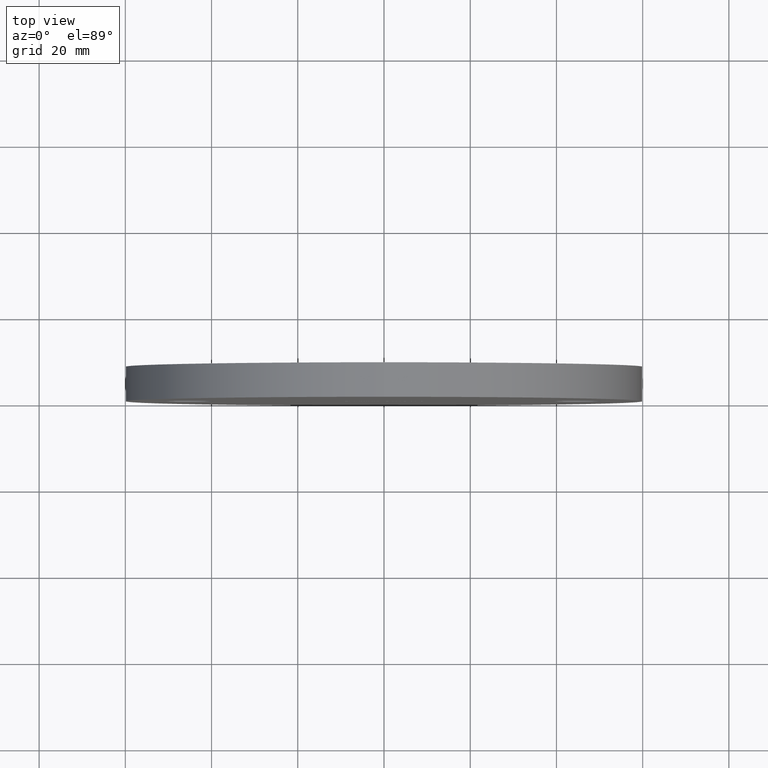
[diagram: clean part render]
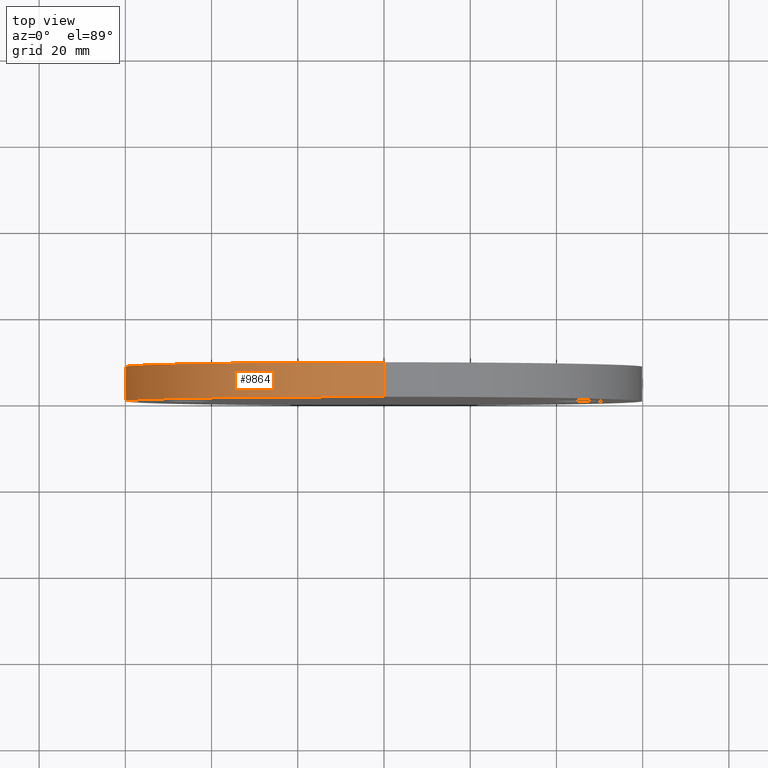
[diagram: same view with one face highlighted and labeled with its STEP entity id]
A machine part, top view. The second image highlights one B-rep face of the part: STEP entity #9864.
In plain terms, the highlighted cylindrical surface (partial cylindrical patch) has radius 60 mm, axis along (-0, -1, -0).
Its self-contained STEP definition (entity closure, byte-faithful):
#415 = EDGE_CURVE ( 'NONE', #2336, #1399, #4163, .T. ) ;
#909 = EDGE_CURVE ( 'NONE', #2400, #2268, #7972, .T. ) ;
#1361 = CARTESIAN_POINT ( 'NONE',  ( 0.0000000000000000000, 8.000000000000000000, 0.0000000000000000000 ) ) ;
#1370 = ORIENTED_EDGE ( 'NONE', *, *, #415, .F. ) ;
#1399 = VERTEX_POINT ( 'NONE', #9034 ) ;
#1415 = CARTESIAN_POINT ( 'NONE',  ( 7.347880794884118400E-015, 8.000000000000000000, 60.00000000000000000 ) ) ;
#2268 = VERTEX_POINT ( 'NONE', #3257 ) ;
#2292 = DIRECTION ( 'NONE',  ( 0.0000000000000000000, 1.000000000000000000, 0.0000000000000000000 ) ) ;
#2336 = VERTEX_POINT ( 'NONE', #9311 ) ;
#2344 = DIRECTION ( 'NONE',  ( -0.0000000000000000000, -1.000000000000000000, -0.0000000000000000000 ) ) ;
#2400 = VERTEX_POINT ( 'NONE', #10148 ) ;
#2651 = EDGE_CURVE ( 'NONE', #2336, #2400, #4138, .T. ) ;
#2744 = EDGE_LOOP ( 'NONE', ( #11822, #1370, #5869, #9125 ) ) ;
#3019 = EDGE_CURVE ( 'NONE', #1399, #2268, #5713, .T. ) ;
#3116 = CARTESIAN_POINT ( 'NONE',  ( 0.0000000000000000000, 8.000000000000000000, 0.0000000000000000000 ) ) ;
#3257 = CARTESIAN_POINT ( 'NONE',  ( 7.347880794884118400E-015, 0.0000000000000000000, 60.00000000000000000 ) ) ;
#3466 = DIRECTION ( 'NONE',  ( 0.0000000000000000000, 1.000000000000000000, 0.0000000000000000000 ) ) ;
#3475 = DIRECTION ( 'NONE',  ( -0.0000000000000000000, -1.000000000000000000, -0.0000000000000000000 ) ) ;
#4029 = DIRECTION ( 'NONE',  ( 0.0000000000000000000, 0.0000000000000000000, -1.000000000000000000 ) ) ;
#4138 = LINE ( 'NONE', #6226, #7947 ) ;
#4163 = CIRCLE ( 'NONE', #9464, 60.00000000000000000 ) ;
#5713 = LINE ( 'NONE', #1415, #11153 ) ;
#5869 = ORIENTED_EDGE ( 'NONE', *, *, #2651, .T. ) ;
#6226 = CARTESIAN_POINT ( 'NONE',  ( 0.0000000000000000000, 8.000000000000000000, -60.00000000000000000 ) ) ;
#6539 = AXIS2_PLACEMENT_3D ( 'NONE', #8207, #3466, #9209 ) ;
#6825 = FACE_OUTER_BOUND ( 'NONE', #2744, .T. ) ;
#7947 = VECTOR ( 'NONE', #3475, 1000.000000000000000 ) ;
#7972 = CIRCLE ( 'NONE', #6539, 60.00000000000000000 ) ;
#8207 = CARTESIAN_POINT ( 'NONE',  ( 0.0000000000000000000, 0.0000000000000000000, 0.0000000000000000000 ) ) ;
#8408 = AXIS2_PLACEMENT_3D ( 'NONE', #3116, #8655, #4029 ) ;
#8655 = DIRECTION ( 'NONE',  ( -0.0000000000000000000, -1.000000000000000000, -0.0000000000000000000 ) ) ;
#8840 = DIRECTION ( 'NONE',  ( 0.0000000000000000000, 0.0000000000000000000, 1.000000000000000000 ) ) ;
#9034 = CARTESIAN_POINT ( 'NONE',  ( 7.347880794884118400E-015, 8.000000000000000000, 60.00000000000000000 ) ) ;
#9125 = ORIENTED_EDGE ( 'NONE', *, *, #909, .T. ) ;
#9209 = DIRECTION ( 'NONE',  ( 0.0000000000000000000, 0.0000000000000000000, 1.000000000000000000 ) ) ;
#9311 = CARTESIAN_POINT ( 'NONE',  ( 0.0000000000000000000, 8.000000000000000000, -60.00000000000000000 ) ) ;
#9464 = AXIS2_PLACEMENT_3D ( 'NONE', #1361, #2292, #8840 ) ;
#9864 = ADVANCED_FACE ( 'NONE', ( #6825 ), #12105, .T. ) ;
#10148 = CARTESIAN_POINT ( 'NONE',  ( 0.0000000000000000000, 0.0000000000000000000, -60.00000000000000000 ) ) ;
#11153 = VECTOR ( 'NONE', #2344, 1000.000000000000000 ) ;
#11822 = ORIENTED_EDGE ( 'NONE', *, *, #3019, .F. ) ;
#12105 = CYLINDRICAL_SURFACE ( 'NONE', #8408, 60.00000000000000000 ) ;